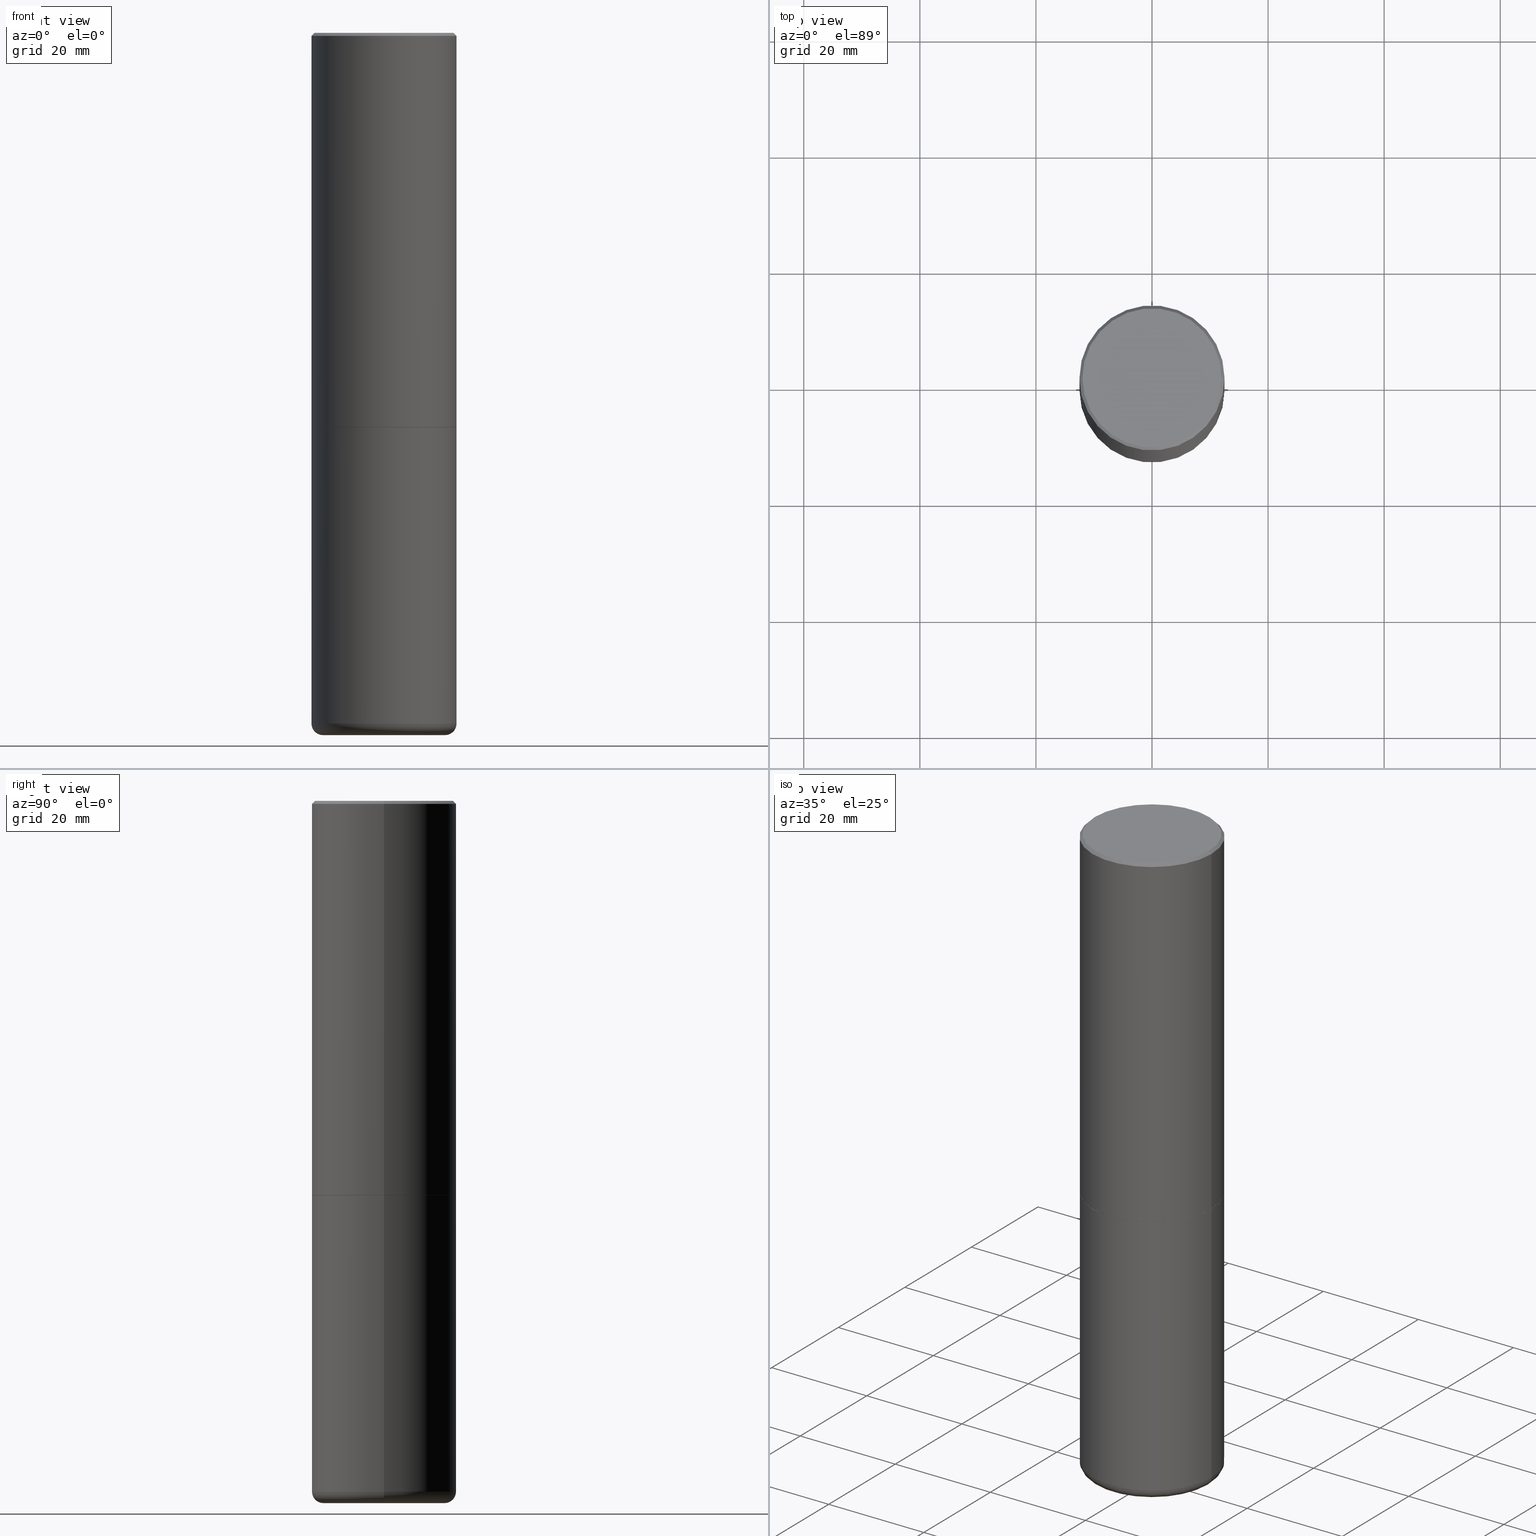
[diagram: canonical four-view strip — front | top / right | iso, engineering-drawing reading convention]
A machine part, canonical four-view strip (front | top / right | iso — engineering-drawing reading convention). The complete STEP part file that produces these views, byte-faithful:
ISO-10303-21;
HEADER;
FILE_DESCRIPTION (( 'STEP AP203' ),
    '1' );
FILE_NAME ('47079.STEP',
    '2024-03-05T18:30:21',
    ( '' ),
    ( '' ),
    'SwSTEP 2.0',
    'SolidWorks 2023',
    '' );
FILE_SCHEMA (( 'CONFIG_CONTROL_DESIGN' ));
ENDSEC;

DATA;
#1 = ADVANCED_FACE ( 'NONE', ( #185 ), #117, .T. ) ;
#2 = VECTOR ( 'NONE', #48, 39.37007874015748143 ) ;
#3 = EDGE_CURVE ( 'NONE', #138, #205, #416, .T. ) ;
#4 = DIRECTION ( 'NONE',  ( 1.000000000000000000, 0.000000000000000000, 0.000000000000000000 ) ) ;
#5 = CARTESIAN_POINT ( 'NONE',  ( -0.4921499999999998098, -1.286100314657068829E-14, -4.685099999999999376 ) ) ;
#6 = DIRECTION ( 'NONE',  ( -2.445468806185136597E-29, 3.491481338843145583E-15, 1.000000000000000000 ) ) ;
#7 = DIRECTION ( 'NONE',  ( -2.445468806185136597E-29, 3.491481338843145583E-15, 1.000000000000000000 ) ) ;
#8 = AXIS2_PLACEMENT_3D ( 'NONE', #154, #7, #287 ) ;
#9 = CARTESIAN_POINT ( 'NONE',  ( 6.547009087918846705E-29, -9.347393840350866318E-15, -2.677199999999999580 ) ) ;
#10 = FACE_OUTER_BOUND ( 'NONE', #298, .T. ) ;
#11 = LINE ( 'NONE', #13, #141 ) ;
#12 = DIRECTION ( 'NONE',  ( -2.445468806185136597E-29, 3.491481338843145583E-15, 1.000000000000000000 ) ) ;
#13 = CARTESIAN_POINT ( 'NONE',  ( 0.4921500000000000874, -3.436665081823296565E-15, 2.399810400207970163E-29 ) ) ;
#14 = CARTESIAN_POINT ( 'NONE',  ( -6.785034193178930130E-45, 9.687230607472910058E-31, 2.774533118565267978E-16 ) ) ;
#15 = VERTEX_POINT ( 'NONE', #45 ) ;
#16 = FACE_OUTER_BOUND ( 'NONE', #406, .T. ) ;
#17 = ORIENTED_EDGE ( 'NONE', *, *, #246, .T. ) ;
#18 = LINE ( 'NONE', #169, #283 ) ;
#19 = CC_DESIGN_PERSON_AND_ORGANIZATION_ASSIGNMENT ( #225, #320, ( #253 ) ) ;
#20 = EDGE_LOOP ( 'NONE', ( #28, #303, #411, #67 ) ) ;
#21 = ORIENTED_EDGE ( 'NONE', *, *, #199, .T. ) ;
#22 = CC_DESIGN_PERSON_AND_ORGANIZATION_ASSIGNMENT ( #363, #295, ( #114 ) ) ;
#23 = ORIENTED_EDGE ( 'NONE', *, *, #366, .F. ) ;
#24 = DIRECTION ( 'NONE',  ( -2.445468806185136597E-29, 3.491481338843145583E-15, 1.000000000000000000 ) ) ;
#25 = DATE_AND_TIME ( #289, #93 ) ;
#26 = LINE ( 'NONE', #242, #38 ) ;
#27 = AXIS2_PLACEMENT_3D ( 'NONE', #304, #372, #405 ) ;
#28 = ORIENTED_EDGE ( 'NONE', *, *, #250, .F. ) ;
#29 = APPROVAL_ROLE ( '' ) ;
#30 = EDGE_CURVE ( 'NONE', #351, #410, #251, .T. ) ;
#31 = DIRECTION ( 'NONE',  ( 1.000000000000000000, -6.982962677686265922E-15, 4.882029041999365698E-29 ) ) ;
#32 = VECTOR ( 'NONE', #380, 39.37007874015748143 ) ;
#33 = DATE_TIME_ROLE ( 'classification_date' ) ;
#34 = DIRECTION ( 'NONE',  ( 1.000000000000000000, -6.982962677686271444E-15, 0.000000000000000000 ) ) ;
#35 = APPROVAL_ROLE ( '' ) ;
#36 = DIRECTION ( 'NONE',  ( -2.445468806185136877E-29, 3.491481338843145188E-15, 1.000000000000000000 ) ) ;
#37 = AXIS2_PLACEMENT_3D ( 'NONE', #42, #238, #69 ) ;
#38 = VECTOR ( 'NONE', #146, 39.37007874015748143 ) ;
#39 = PERSON_AND_ORGANIZATION_ROLE ( 'design_supplier' ) ;
#40 = LINE ( 'NONE', #43, #409 ) ;
#41 = PERSON_AND_ORGANIZATION_ROLE ( 'creator' ) ;
#42 = CARTESIAN_POINT ( 'NONE',  ( 1.604571505845230914E-28, -1.033740983005313699E-14, -4.763799999999998924 ) ) ;
#43 = CARTESIAN_POINT ( 'NONE',  ( -0.4921500000000000874, 3.496936074043333686E-15, -2.420853904668952350E-29 ) ) ;
#44 = DATE_TIME_ROLE ( 'creation_date' ) ;
#45 = CARTESIAN_POINT ( 'NONE',  ( 0.4921499999999999764, -3.446223716380122349E-15, -0.02000000000000010797 ) ) ;
#46 = DIRECTION ( 'NONE',  ( 2.445468806185136597E-29, -3.491481338843145583E-15, -1.000000000000000000 ) ) ;
#47 = AXIS2_PLACEMENT_3D ( 'NONE', #127, #368, #399 ) ;
#48 = DIRECTION ( 'NONE',  ( -2.445468806185136877E-29, 3.491481338843145188E-15, 1.000000000000000000 ) ) ;
#49 = ADVANCED_FACE ( 'NONE', ( #152 ), #198, .T. ) ;
#50 = ORIENTED_EDGE ( 'NONE', *, *, #128, .F. ) ;
#51 = VERTEX_POINT ( 'NONE', #100 ) ;
#52 = CIRCLE ( 'NONE', #223, 0.4921499999999999764 ) ;
#53 = DIRECTION ( 'NONE',  ( 1.000000000000000000, -6.982962677686261977E-15, 4.883557194083111780E-29 ) ) ;
#54 = CARTESIAN_POINT ( 'NONE',  ( 0.000000000000000000, 0.000000000000000000, 0.000000000000000000 ) ) ;
#55 = CARTESIAN_POINT ( 'NONE',  ( 6.547009087918844463E-29, -9.347393840350864740E-15, -2.677199999999999136 ) ) ;
#56 = AXIS2_PLACEMENT_3D ( 'NONE', #159, #70, #326 ) ;
#57 = ADVANCED_FACE ( 'NONE', ( #319 ), #323, .T. ) ;
#58 = PERSON_AND_ORGANIZATION ( #221, #310 ) ;
#59 = DIRECTION ( 'NONE',  ( 1.000000000000000000, -6.982962677686265922E-15, 4.882029041999365698E-29 ) ) ;
#60 = CARTESIAN_POINT ( 'NONE',  ( 6.547009087918846705E-29, -9.347393840350866318E-15, -2.677199999999999580 ) ) ;
#61 = ADVANCED_FACE ( 'NONE', ( #330 ), #165, .T. ) ;
#62 = APPROVAL_ROLE ( '' ) ;
#63 = CARTESIAN_POINT ( 'NONE',  ( 0.4921499999999999764, -1.278405892217416209E-14, -2.677199999999999580 ) ) ;
#64 = COORDINATED_UNIVERSAL_TIME_OFFSET ( 5, 0, .BEHIND. ) ;
#65 = DIRECTION ( 'NONE',  ( -2.445468806185136597E-29, 3.491481338843145583E-15, 1.000000000000000000 ) ) ;
#66 = APPROVAL ( #122, 'UNSPECIFIED' ) ;
#67 = ORIENTED_EDGE ( 'NONE', *, *, #385, .F. ) ;
#68 = DIRECTION ( 'NONE',  ( -0.7071067811869339303, 7.493145998871750444E-15, 0.7071067811861611041 ) ) ;
#69 = DIRECTION ( 'NONE',  ( -1.000000000000000000, 6.982962677686265922E-15, -4.876176775795935793E-29 ) ) ;
#70 = DIRECTION ( 'NONE',  ( -2.445468806185136597E-29, 3.491481338843145583E-15, 1.000000000000000000 ) ) ;
#71 = VERTEX_POINT ( 'NONE', #5 ) ;
#72 = ORIENTED_EDGE ( 'NONE', *, *, #387, .F. ) ;
#73 = ORIENTED_EDGE ( 'NONE', *, *, #3, .F. ) ;
#74 = EDGE_LOOP ( 'NONE', ( #81, #308 ) ) ;
#75 = CONICAL_SURFACE ( 'NONE', #316, 0.4921499999999999764, 0.7853981633974471688 ) ;
#76 = CARTESIAN_POINT ( 'NONE',  ( 0.4911499999999999755, -1.277707595949647608E-14, -2.677199999999999136 ) ) ;
#77 = ORIENTED_EDGE ( 'NONE', *, *, #186, .T. ) ;
#78 = ORIENTED_EDGE ( 'NONE', *, *, #189, .T. ) ;
#79 = DIRECTION ( 'NONE',  ( 1.000000000000000000, -6.982962677686265922E-15, 0.000000000000000000 ) ) ;
#80 = ORIENTED_EDGE ( 'NONE', *, *, #384, .F. ) ;
#81 = ORIENTED_EDGE ( 'NONE', *, *, #352, .F. ) ;
#82 = CIRCLE ( 'NONE', #280, 0.4911499999999999755 ) ;
#83 = PLANE ( 'NONE',  #362 ) ;
#84 = ORIENTED_EDGE ( 'NONE', *, *, #186, .F. ) ;
#85 = CARTESIAN_POINT ( 'NONE',  ( 6.547009087918844463E-29, -9.347393840350864740E-15, -2.677199999999999136 ) ) ;
#86 = CYLINDRICAL_SURFACE ( 'NONE', #88, 0.4921500000000000874 ) ;
#87 = EDGE_CURVE ( 'NONE', #145, #407, #269, .T. ) ;
#88 = AXIS2_PLACEMENT_3D ( 'NONE', #54, #293, #240 ) ;
#89 = TOROIDAL_SURFACE ( 'NONE', #121, 0.4134499999999999287, 0.07869999999999972851 ) ;
#90 = ORIENTED_EDGE ( 'NONE', *, *, #95, .F. ) ;
#91 = PERSON_AND_ORGANIZATION_ROLE ( 'creator' ) ;
#92 = ADVANCED_FACE ( 'NONE', ( #220 ), #279, .T. ) ;
#93 = LOCAL_TIME ( 13, 30, 21.00000000000000000, #156 ) ;
#94 = FACE_OUTER_BOUND ( 'NONE', #103, .T. ) ;
#95 = EDGE_CURVE ( 'NONE', #145, #176, #224, .T. ) ;
#96 = DIRECTION ( 'NONE',  ( -1.000000000000000000, 6.982962677686265922E-15, 0.000000000000000000 ) ) ;
#97 = APPROVAL_STATUS ( 'not_yet_approved' ) ;
#98 = CYLINDRICAL_SURFACE ( 'NONE', #400, 0.4921499999999999764 ) ;
#99 = LOCAL_TIME ( 13, 30, 21.00000000000000000, #357 ) ;
#100 = CARTESIAN_POINT ( 'NONE',  ( 0.4921499999999998098, -1.979460430243731302E-14, -4.685099999999999376 ) ) ;
#101 = CARTESIAN_POINT ( 'NONE',  ( -0.4721499999999996255, 3.331920641658000829E-15, 2.774533118565036250E-16 ) ) ;
#102 = ORIENTED_EDGE ( 'NONE', *, *, #313, .F. ) ;
#103 = EDGE_LOOP ( 'NONE', ( #332, #143, #365, #80 ) ) ;
#104 = VERTEX_POINT ( 'NONE', #137 ) ;
#105 = DIRECTION ( 'NONE',  ( -2.445468806185136597E-29, 3.491481338843145583E-15, 1.000000000000000000 ) ) ;
#106 = CARTESIAN_POINT ( 'NONE',  ( 6.547009087918846705E-29, -9.347393840350866318E-15, -2.677199999999999580 ) ) ;
#107 = ORIENTED_EDGE ( 'NONE', *, *, #358, .F. ) ;
#108 = CIRCLE ( 'NONE', #252, 0.4921500000000003094 ) ;
#109 = ADVANCED_FACE ( 'NONE', ( #16 ), #86, .T. ) ;
#110 = DIRECTION ( 'NONE',  ( 1.000000000000000000, -6.982962677686265922E-15, 0.000000000000000000 ) ) ;
#111 = DIRECTION ( 'NONE',  ( -2.445468806185136597E-29, 3.491481338843145583E-15, 1.000000000000000000 ) ) ;
#112 = SHAPE_DEFINITION_REPRESENTATION ( #344, #247 ) ;
#113 = AXIS2_PLACEMENT_3D ( 'NONE', #85, #318, #386 ) ;
#114 = SECURITY_CLASSIFICATION ( '', '', #231 ) ;
#115 =( LENGTH_UNIT ( ) NAMED_UNIT ( * ) SI_UNIT ( $, .METRE. ) );
#116 = CARTESIAN_POINT ( 'NONE',  ( -0.4134499999999999287, -1.327799150377576435E-14, -4.763799999999998924 ) ) ;
#117 = CYLINDRICAL_SURFACE ( 'NONE', #355, 0.4921500000000000874 ) ;
#118 = DIRECTION ( 'NONE',  ( 1.000000000000000000, -6.982962677686268288E-15, 0.000000000000000000 ) ) ;
#119 = AXIS2_PLACEMENT_3D ( 'NONE', #161, #194, #234 ) ;
#120 = CC_DESIGN_APPROVAL ( #210, ( #300 ) ) ;
#121 = AXIS2_PLACEMENT_3D ( 'NONE', #211, #179, #53 ) ;
#122 = APPROVAL_STATUS ( 'not_yet_approved' ) ;
#123 = AXIS2_PLACEMENT_3D ( 'NONE', #60, #187, #200 ) ;
#124 = CIRCLE ( 'NONE', #290, 0.4921499999999999764 ) ;
#125 = DIRECTION ( 'NONE',  ( -2.445468806185136597E-29, 3.491481338843145583E-15, 1.000000000000000000 ) ) ;
#126 = MANIFOLD_SOLID_BREP ( 'Body-Move/Copy2[2]', #343 ) ;
#127 = CARTESIAN_POINT ( 'NONE',  ( 1.145726590385798145E-28, -1.635793922061402197E-14, -4.685099999999999376 ) ) ;
#128 = EDGE_CURVE ( 'NONE', #207, #15, #11, .T. ) ;
#129 = LOCAL_TIME ( 13, 30, 21.00000000000000000, #149 ) ;
#130 = DIRECTION ( 'NONE',  ( -2.445468806185136877E-29, 3.491481338843145188E-15, 1.000000000000000000 ) ) ;
#131 = DIRECTION ( 'NONE',  ( -2.445468806185136597E-29, 3.491481338843145583E-15, 1.000000000000000000 ) ) ;
#132 = DIRECTION ( 'NONE',  ( -2.445468806185136597E-29, 3.491481338843145583E-15, 1.000000000000000000 ) ) ;
#133 = ORIENTED_EDGE ( 'NONE', *, *, #395, .F. ) ;
#134 = CARTESIAN_POINT ( 'NONE',  ( -0.4911499999999999755, -5.852264739316910449E-15, -2.677199999999999136 ) ) ;
#135 = ORIENTED_EDGE ( 'NONE', *, *, #315, .F. ) ;
#136 = CARTESIAN_POINT ( 'NONE',  ( 0.4921499999999999764, -3.436665081823295777E-15, 2.399810400207969603E-29 ) ) ;
#137 = CARTESIAN_POINT ( 'NONE',  ( 0.4134499999999999287, -1.951982472107036283E-14, -4.763799999999998924 ) ) ;
#138 = VERTEX_POINT ( 'NONE', #373 ) ;
#139 = ORIENTED_EDGE ( 'NONE', *, *, #388, .T. ) ;
#140 = ORIENTED_EDGE ( 'NONE', *, *, #385, .T. ) ;
#141 = VECTOR ( 'NONE', #130, 39.37007874015748143 ) ;
#142 = AXIS2_PLACEMENT_3D ( 'NONE', #153, #285, #4 ) ;
#143 = ORIENTED_EDGE ( 'NONE', *, *, #95, .T. ) ;
#144 = ORIENTED_EDGE ( 'NONE', *, *, #87, .T. ) ;
#145 = VERTEX_POINT ( 'NONE', #134 ) ;
#146 = DIRECTION ( 'NONE',  ( 0.7071067811865466846, -7.319954787623252890E-15, -0.7071067811865483499 ) ) ;
#147 = DIRECTION ( 'NONE',  ( 7.105427357601001859E-15, 1.000000000000000000, -3.491481338843145583E-15 ) ) ;
#148 = CIRCLE ( 'NONE', #158, 0.07869999999999977014 ) ;
#149 = COORDINATED_UNIVERSAL_TIME_OFFSET ( 5, 0, .BEHIND. ) ;
#150 = AXIS2_PLACEMENT_3D ( 'NONE', #299, #131, #403 ) ;
#151 = CIRCLE ( 'NONE', #47, 0.4921500000000000319 ) ;
#152 = FACE_OUTER_BOUND ( 'NONE', #212, .T. ) ;
#153 = CARTESIAN_POINT ( 'NONE',  ( 0.000000000000000000, 0.000000000000000000, 0.000000000000000000 ) ) ;
#154 = CARTESIAN_POINT ( 'NONE',  ( 1.164972429890475074E-28, -1.663271880198097531E-14, -4.763799999999998924 ) ) ;
#155 = UNCERTAINTY_MEASURE_WITH_UNIT (LENGTH_MEASURE( 1.000000000000000082E-05 ), #335, 'distance_accuracy_value', 'NONE');
#156 = COORDINATED_UNIVERSAL_TIME_OFFSET ( 5, 0, .BEHIND. ) ;
#157 = LINE ( 'NONE', #291, #356 ) ;
#158 = AXIS2_PLACEMENT_3D ( 'NONE', #197, #394, #236 ) ;
#159 = CARTESIAN_POINT ( 'NONE',  ( 6.547009087918844463E-29, -9.347393840350864740E-15, -2.677199999999999136 ) ) ;
#160 = DATE_AND_TIME ( #367, #129 ) ;
#161 = CARTESIAN_POINT ( 'NONE',  ( 1.145726590385798145E-28, -1.635793922061402197E-14, -4.685099999999999376 ) ) ;
#162 = DIRECTION ( 'NONE',  ( -1.000000000000000000, 6.982962677686265922E-15, 0.000000000000000000 ) ) ;
#163 = ORIENTED_EDGE ( 'NONE', *, *, #388, .F. ) ;
#164 = PERSON_AND_ORGANIZATION ( #221, #310 ) ;
#165 = CYLINDRICAL_SURFACE ( 'NONE', #150, 0.4921499999999999764 ) ;
#166 = CARTESIAN_POINT ( 'NONE',  ( 4.890937612370299433E-31, -6.982962677686328587E-17, -0.02000000000000010797 ) ) ;
#167 = ORIENTED_EDGE ( 'NONE', *, *, #387, .T. ) ;
#168 = LOCAL_TIME ( 13, 30, 21.00000000000000000, #64 ) ;
#169 = CARTESIAN_POINT ( 'NONE',  ( -0.4921499999999999764, 3.366835455046432478E-15, -0.02000000000000010797 ) ) ;
#170 = ADVANCED_FACE ( 'NONE', ( #305 ), #267, .F. ) ;
#171 = ORIENTED_EDGE ( 'NONE', *, *, #381, .F. ) ;
#172 = VERTEX_POINT ( 'NONE', #116 ) ;
#173 = EDGE_LOOP ( 'NONE', ( #107, #167, #21, #163 ) ) ;
#174 = ORIENTED_EDGE ( 'NONE', *, *, #3, .T. ) ;
#175 = AXIS2_PLACEMENT_3D ( 'NONE', #232, #401, #361 ) ;
#176 = VERTEX_POINT ( 'NONE', #347 ) ;
#177 = CARTESIAN_POINT ( 'NONE',  ( -0.4921499999999999764, 3.366835455046432478E-15, -0.02000000000000010797 ) ) ;
#178 = ADVANCED_FACE ( 'NONE', ( #230 ), #75, .T. ) ;
#179 = DIRECTION ( 'NONE',  ( -2.445468806185136597E-29, 3.491481338843145583E-15, 1.000000000000000000 ) ) ;
#180 = PERSON_AND_ORGANIZATION ( #221, #310 ) ;
#181 = AXIS2_PLACEMENT_3D ( 'NONE', #265, #328, #34 ) ;
#182 = DIRECTION ( 'NONE',  ( -2.445468806185136597E-29, 3.491481338843145583E-15, 1.000000000000000000 ) ) ;
#183 = EDGE_LOOP ( 'NONE', ( #90, #144, #341, #23 ) ) ;
#184 = APPLICATION_PROTOCOL_DEFINITION ( 'international standard', 'config_control_design', 1994, #312 ) ;
#185 = FACE_OUTER_BOUND ( 'NONE', #20, .T. ) ;
#186 = EDGE_CURVE ( 'NONE', #104, #172, #216, .T. ) ;
#187 = DIRECTION ( 'NONE',  ( -2.445468806185136597E-29, 3.491481338843145583E-15, 1.000000000000000000 ) ) ;
#188 = CC_DESIGN_PERSON_AND_ORGANIZATION_ASSIGNMENT ( #393, #41, ( #263 ) ) ;
#189 = EDGE_CURVE ( 'NONE', #207, #176, #243, .T. ) ;
#190 = APPROVAL_PERSON_ORGANIZATION ( #180, #210, #29 ) ;
#191 = CARTESIAN_POINT ( 'NONE',  ( -6.785034193178930130E-45, 9.687230607472910058E-31, 2.774533118565267978E-16 ) ) ;
#192 = CALENDAR_DATE ( 2024, 5, 3 ) ;
#193 = FACE_OUTER_BOUND ( 'NONE', #346, .T. ) ;
#194 = DIRECTION ( 'NONE',  ( -2.445468806185136597E-29, 3.491481338843145583E-15, 1.000000000000000000 ) ) ;
#195 = DIRECTION ( 'NONE',  ( 1.000000000000000000, -6.982962677686265133E-15, 0.000000000000000000 ) ) ;
#196 = CALENDAR_DATE ( 2024, 5, 3 ) ;
#197 = CARTESIAN_POINT ( 'NONE',  ( 0.4134499999999999287, -1.924504513970340634E-14, -4.685099999999999376 ) ) ;
#198 = TOROIDAL_SURFACE ( 'NONE', #119, 0.4134499999999999287, 0.07869999999999972851 ) ;
#199 = EDGE_CURVE ( 'NONE', #15, #370, #233, .T. ) ;
#200 = DIRECTION ( 'NONE',  ( 1.000000000000000000, -6.982962677686265922E-15, 0.000000000000000000 ) ) ;
#201 = FACE_OUTER_BOUND ( 'NONE', #209, .T. ) ;
#202 = ORIENTED_EDGE ( 'NONE', *, *, #244, .T. ) ;
#203 = ORIENTED_EDGE ( 'NONE', *, *, #264, .F. ) ;
#204 = CC_DESIGN_DATE_AND_TIME_ASSIGNMENT ( #329, #44, ( #300 ) ) ;
#205 = VERTEX_POINT ( 'NONE', #63 ) ;
#206 = LENGTH_MEASURE_WITH_UNIT ( LENGTH_MEASURE( 0.02539999999999999897 ), #115 );
#207 = VERTEX_POINT ( 'NONE', #257 ) ;
#208 = CONICAL_SURFACE ( 'NONE', #56, 0.4911499999999999755, 0.7853981633979947308 ) ;
#209 = EDGE_LOOP ( 'NONE', ( #72, #307, #139, #140 ) ) ;
#210 = APPROVAL ( #282, 'UNSPECIFIED' ) ;
#211 = CARTESIAN_POINT ( 'NONE',  ( 1.145726590385798145E-28, -1.635793922061402197E-14, -4.685099999999999376 ) ) ;
#212 = EDGE_LOOP ( 'NONE', ( #133, #270, #202, #135 ) ) ;
#213 = ORIENTED_EDGE ( 'NONE', *, *, #264, .T. ) ;
#214 = DIRECTION ( 'NONE',  ( -0.7071067811865466846, 2.468850131082247989E-15, -0.7071067811865483499 ) ) ;
#215 = CC_DESIGN_DATE_AND_TIME_ASSIGNMENT ( #321, #33, ( #114 ) ) ;
#216 = CIRCLE ( 'NONE', #181, 0.4134499999999999287 ) ;
#217 = CIRCLE ( 'NONE', #377, 0.4721499999999996255 ) ;
#218 = LINE ( 'NONE', #345, #32 ) ;
#219 = CARTESIAN_POINT ( 'NONE',  ( 0.000000000000000000, 0.000000000000000000, 0.000000000000000000 ) ) ;
#220 = FACE_OUTER_BOUND ( 'NONE', #183, .T. ) ;
#221 = PERSON ( 'UNSPECIFIED', 'UNSPECIFIED', 'UNSPECIFIED', ('UNSPECIFIED'), ('UNSPECIFIED'), ('UNSPECIFIED') ) ;
#222 = CLOSED_SHELL ( 'NONE', ( #61, #378, #360, #272, #49, #57 ) ) ;
#223 = AXIS2_PLACEMENT_3D ( 'NONE', #314, #24, #79 ) ;
#224 = LINE ( 'NONE', #350, #375 ) ;
#225 = PERSON_AND_ORGANIZATION ( #221, #310 ) ;
#226 = AXIS2_PLACEMENT_3D ( 'NONE', #191, #6, #31 ) ;
#227 = DATE_AND_TIME ( #196, #248 ) ;
#228 = CIRCLE ( 'NONE', #390, 0.07869999999999977014 ) ;
#229 = DIRECTION ( 'NONE',  ( 1.000000000000000000, -6.982962677686265922E-15, 0.000000000000000000 ) ) ;
#230 = FACE_OUTER_BOUND ( 'NONE', #173, .T. ) ;
#231 = SECURITY_CLASSIFICATION_LEVEL ( 'unclassified' ) ;
#232 = CARTESIAN_POINT ( 'NONE',  ( 6.544563619112662223E-29, -9.343902359012024888E-15, -2.676199999999999690 ) ) ;
#233 = CIRCLE ( 'NONE', #271, 0.4921499999999999764 ) ;
#234 = DIRECTION ( 'NONE',  ( 1.000000000000000000, -6.982962677686261977E-15, 4.883557194083111780E-29 ) ) ;
#235 = EDGE_CURVE ( 'NONE', #172, #104, #317, .T. ) ;
#236 = DIRECTION ( 'NONE',  ( 1.000000000000000000, -6.982962677686265133E-15, 0.000000000000000000 ) ) ;
#237 = ORIENTED_EDGE ( 'NONE', *, *, #395, .T. ) ;
#238 = DIRECTION ( 'NONE',  ( 2.438088387897960049E-29, -3.491481338843145188E-15, -1.000000000000000000 ) ) ;
#239 = DIRECTION ( 'NONE',  ( -2.445468806185136597E-29, 3.491481338843145583E-15, 1.000000000000000000 ) ) ;
#240 = DIRECTION ( 'NONE',  ( 1.000000000000000000, -6.982962677686265922E-15, 4.876176775795935793E-29 ) ) ;
#241 = ORIENTED_EDGE ( 'NONE', *, *, #250, .T. ) ;
#242 = CARTESIAN_POINT ( 'NONE',  ( 0.4921499999999999764, -3.446223716380122349E-15, -0.02000000000000010797 ) ) ;
#243 = CIRCLE ( 'NONE', #175, 0.4921500000000003094 ) ;
#244 = EDGE_CURVE ( 'NONE', #104, #51, #148, .T. ) ;
#245 = CARTESIAN_POINT ( 'NONE',  ( 3.297005828269567997E-15, 0.4721499999999996255, -1.509776258206526442E-15 ) ) ;
#246 = EDGE_CURVE ( 'NONE', #51, #71, #349, .T. ) ;
#247 = ADVANCED_BREP_SHAPE_REPRESENTATION ( '47079', ( #274, #126, #142 ), #325 ) ;
#248 = LOCAL_TIME ( 13, 30, 21.00000000000000000, #255 ) ;
#249 = APPLICATION_PROTOCOL_DEFINITION ( 'international standard', 'config_control_design', 1994, #281 ) ;
#250 = EDGE_CURVE ( 'NONE', #176, #370, #40, .T. ) ;
#251 = CIRCLE ( 'NONE', #226, 0.4721499999999996255 ) ;
#252 = AXIS2_PLACEMENT_3D ( 'NONE', #275, #105, #110 ) ;
#253 = PRODUCT ( '47079', '47079', '', ( #254 ) ) ;
#254 = MECHANICAL_CONTEXT ( 'NONE', #312, 'mechanical' ) ;
#255 = COORDINATED_UNIVERSAL_TIME_OFFSET ( 5, 0, .BEHIND. ) ;
#256 = CONICAL_SURFACE ( 'NONE', #311, 0.4921499999999999764, 0.7853981633974471688 ) ;
#257 = CARTESIAN_POINT ( 'NONE',  ( 0.4921500000000003094, -1.278056744083532224E-14, -2.676199999999999690 ) ) ;
#258 = DIRECTION ( 'NONE',  ( 1.000000000000000000, -6.982962677686265922E-15, 0.000000000000000000 ) ) ;
#259 = ADVANCED_FACE ( 'NONE', ( #94 ), #208, .T. ) ;
#260 = PERSON_AND_ORGANIZATION ( #221, #310 ) ;
#261 = DIRECTION ( 'NONE',  ( 1.000000000000000000, -6.982962677686265922E-15, 4.876176775795935793E-29 ) ) ;
#262 = CARTESIAN_POINT ( 'NONE',  ( 4.890937612370299433E-31, -6.982962677686328587E-17, -0.02000000000000010797 ) ) ;
#263 = PRODUCT_DEFINITION_FORMATION_WITH_SPECIFIED_SOURCE ( 'ANY', '', #253, .NOT_KNOWN. ) ;
#264 = EDGE_CURVE ( 'NONE', #71, #138, #157, .T. ) ;
#265 = CARTESIAN_POINT ( 'NONE',  ( 1.164972429890475074E-28, -1.663271880198097531E-14, -4.763799999999998924 ) ) ;
#266 = DIRECTION ( 'NONE',  ( -1.000000000000000000, 6.982962677686265922E-15, -4.876176775795935793E-29 ) ) ;
#267 = PLANE ( 'NONE',  #389 ) ;
#268 = ORIENTED_EDGE ( 'NONE', *, *, #30, .T. ) ;
#269 = CIRCLE ( 'NONE', #113, 0.4911499999999999755 ) ;
#270 = ORIENTED_EDGE ( 'NONE', *, *, #235, .T. ) ;
#271 = AXIS2_PLACEMENT_3D ( 'NONE', #364, #404, #229 ) ;
#272 = ADVANCED_FACE ( 'NONE', ( #10 ), #98, .T. ) ;
#273 = CARTESIAN_POINT ( 'NONE',  ( 0.4721499999999996255, -3.342703923013973791E-15, 2.774533118565500199E-16 ) ) ;
#274 = MANIFOLD_SOLID_BREP ( 'Body-Move/Copy2[1]', #222 ) ;
#275 = CARTESIAN_POINT ( 'NONE',  ( 6.544563619112662223E-29, -9.343902359012024888E-15, -2.676199999999999690 ) ) ;
#276 = FACE_OUTER_BOUND ( 'NONE', #309, .T. ) ;
#277 = DIRECTION ( 'NONE',  ( -2.438088387897960049E-29, 3.491481338843145188E-15, 1.000000000000000000 ) ) ;
#278 = ORIENTED_EDGE ( 'NONE', *, *, #358, .T. ) ;
#279 = CONICAL_SURFACE ( 'NONE', #333, 0.4911499999999999755, 0.7853981633979947308 ) ;
#280 = AXIS2_PLACEMENT_3D ( 'NONE', #331, #132, #301 ) ;
#281 = APPLICATION_CONTEXT ( 'configuration controlled 3d designs of mechanical parts and assemblies' ) ;
#282 = APPROVAL_STATUS ( 'not_yet_approved' ) ;
#283 = VECTOR ( 'NONE', #214, 39.37007874015748143 ) ;
#284 = DIMENSIONAL_EXPONENTS ( 1.000000000000000000, 0.000000000000000000, 0.000000000000000000, 0.000000000000000000, 0.000000000000000000, 0.000000000000000000, 0.000000000000000000 ) ;
#285 = DIRECTION ( 'NONE',  ( 0.000000000000000000, 0.000000000000000000, 1.000000000000000000 ) ) ;
#286 = PERSON_AND_ORGANIZATION ( #221, #310 ) ;
#287 = DIRECTION ( 'NONE',  ( 1.000000000000000000, -6.982962677686271444E-15, 0.000000000000000000 ) ) ;
#288 = CC_DESIGN_PERSON_AND_ORGANIZATION_ASSIGNMENT ( #260, #91, ( #300 ) ) ;
#289 = CALENDAR_DATE ( 2024, 5, 3 ) ;
#290 = AXIS2_PLACEMENT_3D ( 'NONE', #9, #125, #258 ) ;
#291 = CARTESIAN_POINT ( 'NONE',  ( -0.4921499999999999764, 3.496936074043332897E-15, -2.420853904668951509E-29 ) ) ;
#292 = DIRECTION ( 'NONE',  ( -2.445468806185136877E-29, 3.491481338843145188E-15, 1.000000000000000000 ) ) ;
#293 = DIRECTION ( 'NONE',  ( -2.445468806185136597E-29, 3.491481338843145583E-15, 1.000000000000000000 ) ) ;
#294 = PRODUCT_RELATED_PRODUCT_CATEGORY ( 'detail', '', ( #253 ) ) ;
#295 = PERSON_AND_ORGANIZATION_ROLE ( 'classification_officer' ) ;
#296 = CARTESIAN_POINT ( 'NONE',  ( 0.000000000000000000, 0.000000000000000000, 0.000000000000000000 ) ) ;
#297 = EDGE_LOOP ( 'NONE', ( #268, #278 ) ) ;
#298 = EDGE_LOOP ( 'NONE', ( #203, #379, #306, #73 ) ) ;
#299 = CARTESIAN_POINT ( 'NONE',  ( 0.000000000000000000, 0.000000000000000000, 0.000000000000000000 ) ) ;
#300 = PRODUCT_DEFINITION ( 'UNKNOWN', '', #263, #327 ) ;
#301 = DIRECTION ( 'NONE',  ( 1.000000000000000000, -6.982962677686268288E-15, 0.000000000000000000 ) ) ;
#302 = CC_DESIGN_APPROVAL ( #374, ( #263 ) ) ;
#303 = ORIENTED_EDGE ( 'NONE', *, *, #366, .T. ) ;
#304 = CARTESIAN_POINT ( 'NONE',  ( 6.547009087918846705E-29, -9.347393840350866318E-15, -2.677199999999999580 ) ) ;
#305 = FACE_OUTER_BOUND ( 'NONE', #74, .T. ) ;
#306 = ORIENTED_EDGE ( 'NONE', *, *, #381, .T. ) ;
#307 = ORIENTED_EDGE ( 'NONE', *, *, #30, .F. ) ;
#308 = ORIENTED_EDGE ( 'NONE', *, *, #87, .F. ) ;
#309 = EDGE_LOOP ( 'NONE', ( #77, #237, #369, #402 ) ) ;
#310 = ORGANIZATION ( 'UNSPECIFIED', 'UNSPECIFIED', '' ) ;
#311 = AXIS2_PLACEMENT_3D ( 'NONE', #262, #396, #96 ) ;
#312 = APPLICATION_CONTEXT ( 'configuration controlled 3d designs of mechanical parts and assemblies' ) ;
#313 = EDGE_CURVE ( 'NONE', #205, #138, #124, .T. ) ;
#314 = CARTESIAN_POINT ( 'NONE',  ( 4.890937612370299433E-31, -6.982962677686328587E-17, -0.02000000000000010797 ) ) ;
#315 = EDGE_CURVE ( 'NONE', #71, #51, #151, .T. ) ;
#316 = AXIS2_PLACEMENT_3D ( 'NONE', #166, #46, #162 ) ;
#317 = CIRCLE ( 'NONE', #8, 0.4134499999999999287 ) ;
#318 = DIRECTION ( 'NONE',  ( -2.445468806185136597E-29, 3.491481338843145583E-15, 1.000000000000000000 ) ) ;
#319 = FACE_OUTER_BOUND ( 'NONE', #339, .T. ) ;
#320 = PERSON_AND_ORGANIZATION_ROLE ( 'design_owner' ) ;
#321 = DATE_AND_TIME ( #192, #168 ) ;
#322 = PLANE ( 'NONE',  #27 ) ;
#323 = PLANE ( 'NONE',  #37 ) ;
#324 = APPROVAL_DATE_TIME ( #227, #374 ) ;
#325 =( GEOMETRIC_REPRESENTATION_CONTEXT ( 3 ) GLOBAL_UNCERTAINTY_ASSIGNED_CONTEXT ( ( #155 ) ) GLOBAL_UNIT_ASSIGNED_CONTEXT ( ( #335, #408, #412 ) ) REPRESENTATION_CONTEXT ( 'NONE', 'WORKASPACE' ) );
#326 = DIRECTION ( 'NONE',  ( 1.000000000000000000, -6.982962677686268288E-15, 0.000000000000000000 ) ) ;
#327 = DESIGN_CONTEXT ( 'detailed design', #281, 'design' ) ;
#328 = DIRECTION ( 'NONE',  ( -2.445468806185136597E-29, 3.491481338843145583E-15, 1.000000000000000000 ) ) ;
#329 = DATE_AND_TIME ( #397, #99 ) ;
#330 = FACE_OUTER_BOUND ( 'NONE', #371, .T. ) ;
#331 = CARTESIAN_POINT ( 'NONE',  ( 6.547009087918844463E-29, -9.347393840350864740E-15, -2.677199999999999136 ) ) ;
#332 = ORIENTED_EDGE ( 'NONE', *, *, #352, .T. ) ;
#333 = AXIS2_PLACEMENT_3D ( 'NONE', #55, #182, #118 ) ;
#334 = ADVANCED_FACE ( 'NONE', ( #201 ), #256, .T. ) ;
#335 =( CONVERSION_BASED_UNIT ( 'INCH', #206 ) LENGTH_UNIT ( ) NAMED_UNIT ( #284 ) );
#336 = CC_DESIGN_APPROVAL ( #66, ( #114 ) ) ;
#337 = ORIENTED_EDGE ( 'NONE', *, *, #199, .F. ) ;
#338 = CARTESIAN_POINT ( 'NONE',  ( -0.4134499999999999287, -1.342020027961388708E-14, -4.685099999999999376 ) ) ;
#339 = EDGE_LOOP ( 'NONE', ( #84, #382 ) ) ;
#340 = DIRECTION ( 'NONE',  ( -1.000000000000000000, 7.105427357600989237E-15, 0.000000000000000000 ) ) ;
#341 = ORIENTED_EDGE ( 'NONE', *, *, #384, .T. ) ;
#342 = ORIENTED_EDGE ( 'NONE', *, *, #313, .T. ) ;
#343 = CLOSED_SHELL ( 'NONE', ( #259, #109, #178, #334, #1, #92, #170, #398 ) ) ;
#344 = PRODUCT_DEFINITION_SHAPE ( 'NONE', 'NONE',  #300 ) ;
#345 = CARTESIAN_POINT ( 'NONE',  ( 0.4911499999999999755, -1.277707595949647608E-14, -2.677199999999999136 ) ) ;
#346 = EDGE_LOOP ( 'NONE', ( #342, #174 ) ) ;
#347 = CARTESIAN_POINT ( 'NONE',  ( -0.4921500000000003094, -1.209929918851106266E-15, -2.676199999999999690 ) ) ;
#348 = DIRECTION ( 'NONE',  ( 1.000000000000000000, -6.982962677686265922E-15, 4.876176775795935793E-29 ) ) ;
#349 = CIRCLE ( 'NONE', #392, 0.4921500000000000319 ) ;
#350 = CARTESIAN_POINT ( 'NONE',  ( -0.4911499999999999755, -5.857563193665132851E-15, -2.677199999999999136 ) ) ;
#351 = VERTEX_POINT ( 'NONE', #101 ) ;
#352 = EDGE_CURVE ( 'NONE', #407, #145, #82, .T. ) ;
#353 = CC_DESIGN_SECURITY_CLASSIFICATION ( #114, ( #263 ) ) ;
#354 = CC_DESIGN_PERSON_AND_ORGANIZATION_ASSIGNMENT ( #58, #39, ( #263 ) ) ;
#355 = AXIS2_PLACEMENT_3D ( 'NONE', #219, #111, #348 ) ;
#356 = VECTOR ( 'NONE', #292, 39.37007874015748143 ) ;
#357 = COORDINATED_UNIVERSAL_TIME_OFFSET ( 5, 0, .BEHIND. ) ;
#358 = EDGE_CURVE ( 'NONE', #410, #351, #217, .T. ) ;
#359 = CARTESIAN_POINT ( 'NONE',  ( 1.145726590385798145E-28, -1.635793922061402197E-14, -4.685099999999999376 ) ) ;
#360 = ADVANCED_FACE ( 'NONE', ( #193 ), #322, .F. ) ;
#361 = DIRECTION ( 'NONE',  ( 1.000000000000000000, -6.982962677686265922E-15, 0.000000000000000000 ) ) ;
#362 = AXIS2_PLACEMENT_3D ( 'NONE', #245, #414, #266 ) ;
#363 = PERSON_AND_ORGANIZATION ( #221, #310 ) ;
#364 = CARTESIAN_POINT ( 'NONE',  ( 4.890937612370299433E-31, -6.982962677686328587E-17, -0.02000000000000010797 ) ) ;
#365 = ORIENTED_EDGE ( 'NONE', *, *, #189, .F. ) ;
#366 = EDGE_CURVE ( 'NONE', #176, #207, #108, .T. ) ;
#367 = CALENDAR_DATE ( 2024, 5, 3 ) ;
#368 = DIRECTION ( 'NONE',  ( -2.445468806185136597E-29, 3.491481338843145583E-15, 1.000000000000000000 ) ) ;
#369 = ORIENTED_EDGE ( 'NONE', *, *, #246, .F. ) ;
#370 = VERTEX_POINT ( 'NONE', #177 ) ;
#371 = EDGE_LOOP ( 'NONE', ( #17, #213, #102, #171 ) ) ;
#372 = DIRECTION ( 'NONE',  ( 2.438088387897960049E-29, -3.491481338843145188E-15, -1.000000000000000000 ) ) ;
#373 = CARTESIAN_POINT ( 'NONE',  ( -0.4921499999999999764, -9.355730456439111248E-15, -2.677199999999999580 ) ) ;
#374 = APPROVAL ( #97, 'UNSPECIFIED' ) ;
#375 = VECTOR ( 'NONE', #68, 39.37007874015748143 ) ;
#376 = FACE_OUTER_BOUND ( 'NONE', #297, .T. ) ;
#377 = AXIS2_PLACEMENT_3D ( 'NONE', #14, #239, #59 ) ;
#378 = ADVANCED_FACE ( 'NONE', ( #276 ), #89, .T. ) ;
#379 = ORIENTED_EDGE ( 'NONE', *, *, #315, .T. ) ;
#380 = DIRECTION ( 'NONE',  ( 0.7071067811869339303, -2.468850131086304311E-15, 0.7071067811861611041 ) ) ;
#381 = EDGE_CURVE ( 'NONE', #51, #205, #415, .T. ) ;
#382 = ORIENTED_EDGE ( 'NONE', *, *, #235, .F. ) ;
#383 = APPROVAL_PERSON_ORGANIZATION ( #164, #374, #62 ) ;
#384 = EDGE_CURVE ( 'NONE', #407, #207, #218, .T. ) ;
#385 = EDGE_CURVE ( 'NONE', #370, #15, #52, .T. ) ;
#386 = DIRECTION ( 'NONE',  ( 1.000000000000000000, -6.982962677686268288E-15, 0.000000000000000000 ) ) ;
#387 = EDGE_CURVE ( 'NONE', #410, #15, #26, .T. ) ;
#388 = EDGE_CURVE ( 'NONE', #351, #370, #18, .T. ) ;
#389 = AXIS2_PLACEMENT_3D ( 'NONE', #106, #277, #418 ) ;
#390 = AXIS2_PLACEMENT_3D ( 'NONE', #338, #147, #340 ) ;
#391 = APPROVAL_DATE_TIME ( #160, #210 ) ;
#392 = AXIS2_PLACEMENT_3D ( 'NONE', #359, #65, #195 ) ;
#393 = PERSON_AND_ORGANIZATION ( #221, #310 ) ;
#394 = DIRECTION ( 'NONE',  ( -6.982962677686266711E-15, -1.000000000000000000, 3.491481338843145583E-15 ) ) ;
#395 = EDGE_CURVE ( 'NONE', #172, #71, #228, .T. ) ;
#396 = DIRECTION ( 'NONE',  ( 2.445468806185136597E-29, -3.491481338843145583E-15, -1.000000000000000000 ) ) ;
#397 = CALENDAR_DATE ( 2024, 5, 3 ) ;
#398 = ADVANCED_FACE ( 'NONE', ( #376 ), #83, .F. ) ;
#399 = DIRECTION ( 'NONE',  ( 1.000000000000000000, -6.982962677686265133E-15, 0.000000000000000000 ) ) ;
#400 = AXIS2_PLACEMENT_3D ( 'NONE', #296, #12, #261 ) ;
#401 = DIRECTION ( 'NONE',  ( -2.445468806185136597E-29, 3.491481338843145583E-15, 1.000000000000000000 ) ) ;
#402 = ORIENTED_EDGE ( 'NONE', *, *, #244, .F. ) ;
#403 = DIRECTION ( 'NONE',  ( 1.000000000000000000, -6.982962677686265922E-15, 4.876176775795935793E-29 ) ) ;
#404 = DIRECTION ( 'NONE',  ( -2.445468806185136597E-29, 3.491481338843145583E-15, 1.000000000000000000 ) ) ;
#405 = DIRECTION ( 'NONE',  ( -1.000000000000000000, 6.982962677686265922E-15, -4.876176775795935793E-29 ) ) ;
#406 = EDGE_LOOP ( 'NONE', ( #78, #241, #337, #50 ) ) ;
#407 = VERTEX_POINT ( 'NONE', #76 ) ;
#408 =( NAMED_UNIT ( * ) PLANE_ANGLE_UNIT ( ) SI_UNIT ( $, .RADIAN. ) );
#409 = VECTOR ( 'NONE', #36, 39.37007874015748143 ) ;
#410 = VERTEX_POINT ( 'NONE', #273 ) ;
#411 = ORIENTED_EDGE ( 'NONE', *, *, #128, .T. ) ;
#412 =( NAMED_UNIT ( * ) SI_UNIT ( $, .STERADIAN. ) SOLID_ANGLE_UNIT ( ) );
#413 = APPROVAL_DATE_TIME ( #25, #66 ) ;
#414 = DIRECTION ( 'NONE',  ( 2.438088387897960049E-29, -3.491481338843145188E-15, -1.000000000000000000 ) ) ;
#415 = LINE ( 'NONE', #136, #2 ) ;
#416 = CIRCLE ( 'NONE', #123, 0.4921499999999999764 ) ;
#417 = APPROVAL_PERSON_ORGANIZATION ( #286, #66, #35 ) ;
#418 = DIRECTION ( 'NONE',  ( 1.000000000000000000, -6.982962677686265922E-15, 4.876176775795935793E-29 ) ) ;
ENDSEC;
END-ISO-10303-21;
